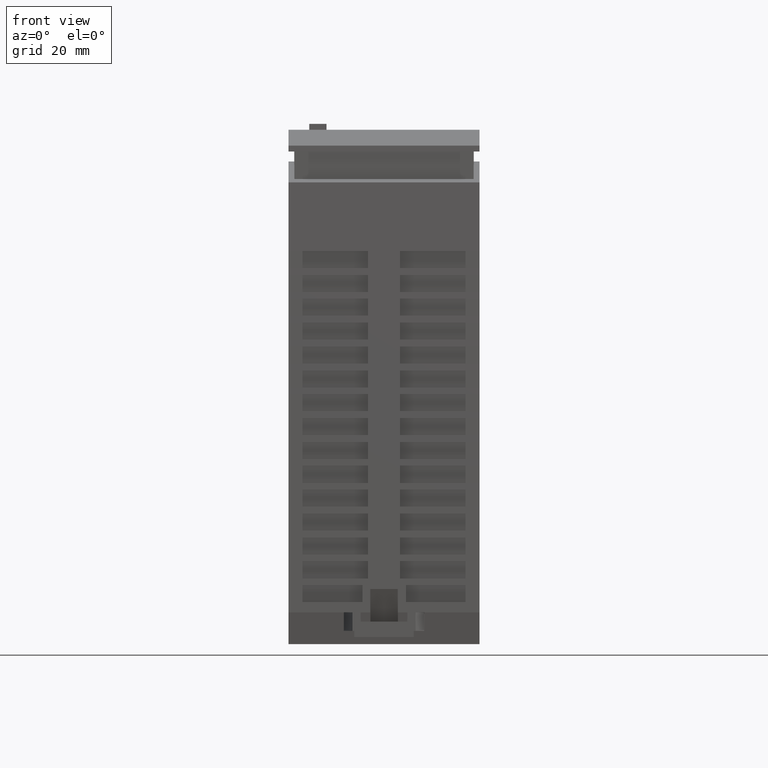
[diagram: clean part render]
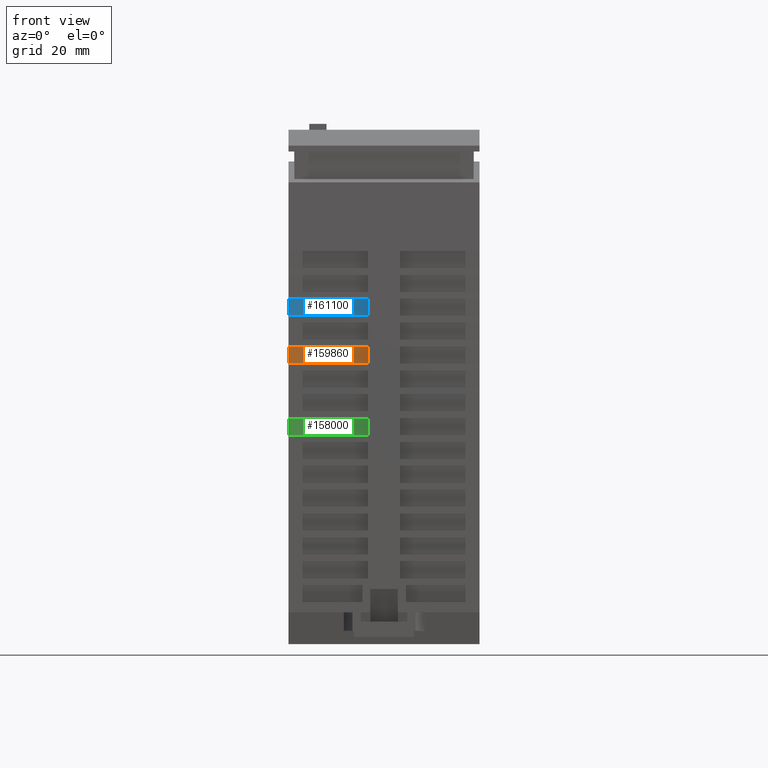
[diagram: same view with three faces highlighted in distinct colors, each labeled with its STEP entity id]
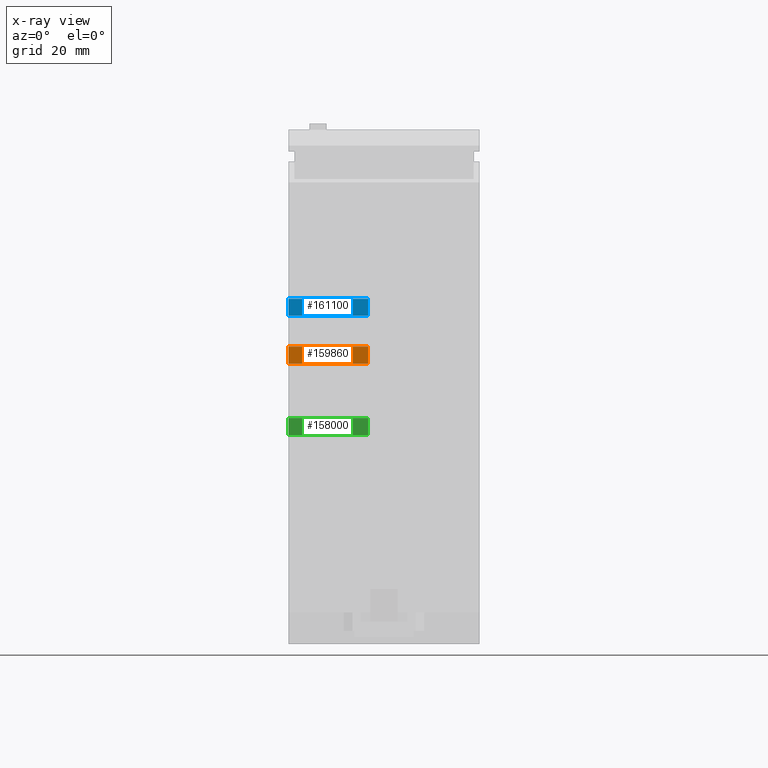
[diagram: x-ray of the same camera — body ghosted, the three highlighted faces saturated]
A machine part, front view with three faces highlighted in distinct colors.
The next image is the same camera in x-ray (body ghosted, the three faces saturated) — at least one of them is partly hidden behind the body in this view.
Their STEP definitions:

[orange] entity #159860 — the highlighted planar face has unit normal (-0, 1, 0.0087).
#5910=CARTESIAN_POINT('',(124.800000351686,-18.3006684360776,
-34.7997901639554));
#5920=DIRECTION('',(0.999961923064172,0.00872653549837376,
-1.10348171245818E-9));
#5930=VECTOR('',#5920,1.);
#5940=LINE('',#5910,#5930);
#6870=CARTESIAN_POINT('',(117.898329694596,-18.3608984034374,
-34.7997901563392));
#6880=VERTEX_POINT('',#6870);
#6910=CARTESIAN_POINT('',(121.103042778024,-18.332931296051,
-34.7997901598757));
#6920=VERTEX_POINT('',#6910);
#6930=EDGE_CURVE('',#6880,#6920,#5940,.T.);
#147410=CARTESIAN_POINT('',(121.103042794577,-18.332931296051,
-19.7997901598757));
#147420=VERTEX_POINT('',#147410);
#147450=CARTESIAN_POINT('',(84.0000002192216,-18.656724643241,
-19.7997901189316));
#147460=DIRECTION('',(-0.999961923064172,-0.00872653549837376,
1.10348171245818E-9));
#147470=VECTOR('',#147460,1.);
#147480=LINE('',#147450,#147470);
#147490=CARTESIAN_POINT('',(117.898329711149,-18.3608984034374,
-19.7997901563392));
#147500=VERTEX_POINT('',#147490);
#147510=EDGE_CURVE('',#147420,#147500,#147480,.T.);
#153740=CARTESIAN_POINT('',(100.000000202669,-18.5170947585889,
-34.799790136588));
#153750=DIRECTION('',(-0.00872653549837376,0.999961923064171,
9.62993853412825E-12));
#153760=DIRECTION('',(-0.999961923064172,-0.00872653549837376,
1.10348171245818E-9));
#153770=AXIS2_PLACEMENT_3D('',#153740,#153750,#153760);
#153780=PLANE('',#153770);
#159570=CARTESIAN_POINT('',(117.898329707562,-18.3608984034374,
-23.0497901563392));
#159580=DIRECTION('',(-1.10352367625519E-9,-8.52434683568721E-24,-1.));
#159590=VECTOR('',#159580,1.);
#159600=LINE('',#159570,#159590);
#159610=EDGE_CURVE('',#147500,#6880,#159600,.T.);
#159750=ORIENTED_EDGE('',*,*,#159610,.T.);
#159760=ORIENTED_EDGE('',*,*,#147510,.T.);
#159770=CARTESIAN_POINT('',(121.103042790991,-18.332931296051,
-23.0497901598757));
#159780=DIRECTION('',(1.10352367625519E-9,8.52434683568721E-24,1.));
#159790=VECTOR('',#159780,1.);
#159800=LINE('',#159770,#159790);
#159810=EDGE_CURVE('',#6920,#147420,#159800,.T.);
#159820=ORIENTED_EDGE('',*,*,#159810,.T.);
#159830=ORIENTED_EDGE('',*,*,#6930,.T.);
#159840=EDGE_LOOP('',(#159830,#159820,#159760,#159750));
#159850=FACE_OUTER_BOUND('',#159840,.T.);
#159860=ADVANCED_FACE('',(#159850),#153780,.F.);

[blue] entity #161100 — the highlighted planar face has unit normal (-0, 1, 0.0087).
#5910=CARTESIAN_POINT('',(124.800000351686,-18.3006684360776,
-34.7997901639554));
#5920=DIRECTION('',(0.999961923064172,0.00872653549837376,
-1.10348171245818E-9));
#5930=VECTOR('',#5920,1.);
#5940=LINE('',#5910,#5930);
#6390=CARTESIAN_POINT('',(108.902445896445,-18.4394042920049,
-34.799790146412));
#6400=VERTEX_POINT('',#6390);
#6430=CARTESIAN_POINT('',(112.098926576175,-18.4115090277172,
-34.7997901499394));
#6440=VERTEX_POINT('',#6430);
#6450=EDGE_CURVE('',#6400,#6440,#5940,.T.);
#146650=CARTESIAN_POINT('',(112.098926592728,-18.4115090277172,
-19.7997901499394));
#146660=VERTEX_POINT('',#146650);
#146690=CARTESIAN_POINT('',(84.0000002192216,-18.656724643241,
-19.7997901189316));
#146700=DIRECTION('',(-0.999961923064172,-0.00872653549837376,
1.10348171245818E-9));
#146710=VECTOR('',#146700,1.);
#146720=LINE('',#146690,#146710);
#146730=CARTESIAN_POINT('',(108.902445912998,-18.4394042920049,
-19.799790146412));
#146740=VERTEX_POINT('',#146730);
#146750=EDGE_CURVE('',#146660,#146740,#146720,.T.);
#153740=CARTESIAN_POINT('',(100.000000202669,-18.5170947585889,
-34.799790136588));
#153750=DIRECTION('',(-0.00872653549837376,0.999961923064171,
9.62993853412825E-12));
#153760=DIRECTION('',(-0.999961923064172,-0.00872653549837376,
1.10348171245818E-9));
#153770=AXIS2_PLACEMENT_3D('',#153740,#153750,#153760);
#153780=PLANE('',#153770);
#160810=CARTESIAN_POINT('',(108.902445909412,-18.4394042920049,
-23.049790146412));
#160820=DIRECTION('',(-1.10352367625519E-9,-8.52434683568721E-24,-1.));
#160830=VECTOR('',#160820,1.);
#160840=LINE('',#160810,#160830);
#160850=EDGE_CURVE('',#146740,#6400,#160840,.T.);
#160990=ORIENTED_EDGE('',*,*,#160850,.T.);
#161000=ORIENTED_EDGE('',*,*,#146750,.T.);
#161010=CARTESIAN_POINT('',(112.098926589142,-18.4115090277172,
-23.0497901499394));
#161020=DIRECTION('',(1.10352367625519E-9,8.52434683568721E-24,1.));
#161030=VECTOR('',#161020,1.);
#161040=LINE('',#161010,#161030);
#161050=EDGE_CURVE('',#6440,#146660,#161040,.T.);
#161060=ORIENTED_EDGE('',*,*,#161050,.T.);
#161070=ORIENTED_EDGE('',*,*,#6450,.T.);
#161080=EDGE_LOOP('',(#161070,#161060,#161000,#160990));
#161090=FACE_OUTER_BOUND('',#161080,.T.);
#161100=ADVANCED_FACE('',(#161090),#153780,.F.);

[green] entity #158000 — the highlighted planar face has unit normal (-0, 1, 0.0087).
#5910=CARTESIAN_POINT('',(124.800000351686,-18.3006684360776,
-34.7997901639554));
#5920=DIRECTION('',(0.999961923064172,0.00872653549837376,
-1.10348171245818E-9));
#5930=VECTOR('',#5920,1.);
#5940=LINE('',#5910,#5930);
#7590=CARTESIAN_POINT('',(131.392155391822,-18.2431395705862,
-34.79979017123));
#7600=VERTEX_POINT('',#7590);
#7630=CARTESIAN_POINT('',(134.608819974645,-18.2150681640447,
-34.7997901747796));
#7640=VERTEX_POINT('',#7630);
#7650=EDGE_CURVE('',#7600,#7640,#5940,.T.);
#148550=CARTESIAN_POINT('',(134.608819991198,-18.2150681640447,
-19.7997901747796));
#148560=VERTEX_POINT('',#148550);
#148590=CARTESIAN_POINT('',(84.0000002192216,-18.656724643241,
-19.7997901189316));
#148600=DIRECTION('',(-0.999961923064172,-0.00872653549837376,
1.10348171245818E-9));
#148610=VECTOR('',#148600,1.);
#148620=LINE('',#148590,#148610);
#148630=CARTESIAN_POINT('',(131.392155408375,-18.2431395705862,
-19.79979017123));
#148640=VERTEX_POINT('',#148630);
#148650=EDGE_CURVE('',#148560,#148640,#148620,.T.);
#153740=CARTESIAN_POINT('',(100.000000202669,-18.5170947585889,
-34.799790136588));
#153750=DIRECTION('',(-0.00872653549837376,0.999961923064171,
9.62993853412825E-12));
#153760=DIRECTION('',(-0.999961923064172,-0.00872653549837376,
1.10348171245818E-9));
#153770=AXIS2_PLACEMENT_3D('',#153740,#153750,#153760);
#153780=PLANE('',#153770);
#157710=CARTESIAN_POINT('',(131.392155404789,-18.2431395705862,
-23.04979017123));
#157720=DIRECTION('',(-1.10352327023076E-9,3.54331291260306E-18,-1.));
#157730=VECTOR('',#157720,1.);
#157740=LINE('',#157710,#157730);
#157750=EDGE_CURVE('',#148640,#7600,#157740,.T.);
#157890=ORIENTED_EDGE('',*,*,#157750,.T.);
#157900=ORIENTED_EDGE('',*,*,#148650,.T.);
#157910=CARTESIAN_POINT('',(134.608819987611,-18.2150681640447,
-23.0497901747796));
#157920=DIRECTION('',(1.10352367625519E-9,8.52434683568721E-24,1.));
#157930=VECTOR('',#157920,1.);
#157940=LINE('',#157910,#157930);
#157950=EDGE_CURVE('',#7640,#148560,#157940,.T.);
#157960=ORIENTED_EDGE('',*,*,#157950,.T.);
#157970=ORIENTED_EDGE('',*,*,#7650,.T.);
#157980=EDGE_LOOP('',(#157970,#157960,#157900,#157890));
#157990=FACE_OUTER_BOUND('',#157980,.T.);
#158000=ADVANCED_FACE('',(#157990),#153780,.F.);